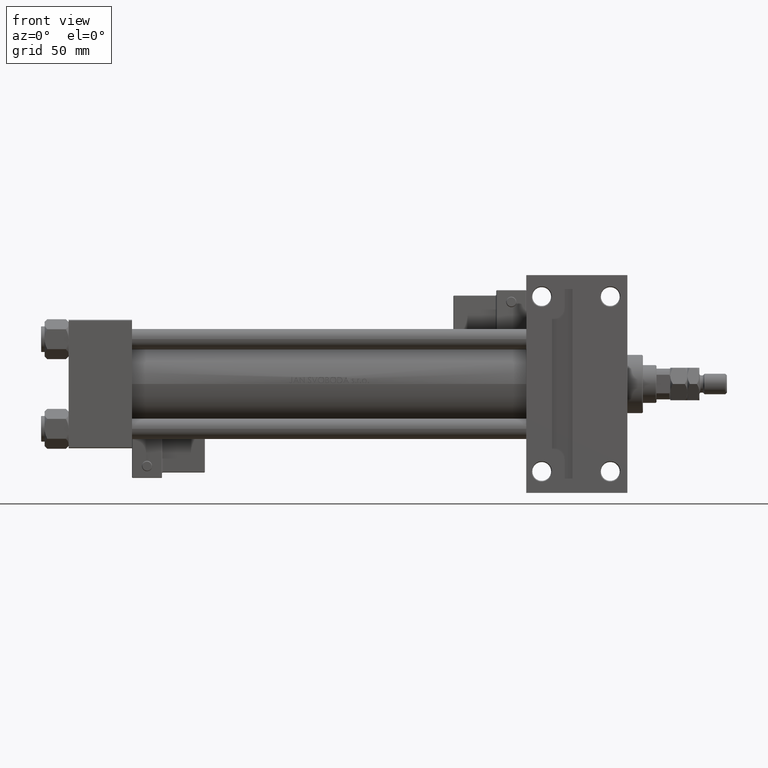
[diagram: clean part render]
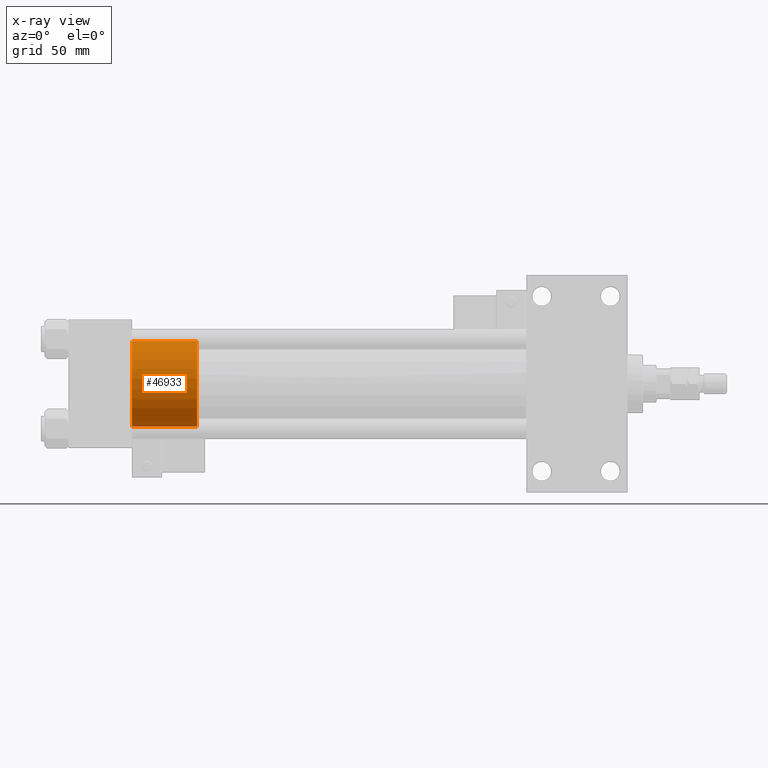
[diagram: x-ray — body ghosted, one internal face saturated and labeled with its STEP entity id]
A machine part, front view, then the same camera in x-ray: the body is ghosted and one INTERNAL B-rep face — a face not visible from any outside direction — is saturated and labeled: STEP entity #46933.
In plain terms, the highlighted cylindrical surface (partial cylindrical patch) has radius 25 mm, axis along (-1, 0, 0).
Its self-contained STEP definition (entity closure, byte-faithful):
#981 = DIRECTION ( 'NONE',  ( -1.000000000000000000, 0.000000000000000000, 0.000000000000000000 ) ) ;
#2353 = AXIS2_PLACEMENT_3D ( 'NONE', #29628, #36634, #45500 ) ;
#2949 = EDGE_CURVE ( 'NONE', #47718, #29989, #6965, .T. ) ;
#4135 = CARTESIAN_POINT ( 'NONE',  ( 0.000000000000000000, 0.000000000000000000, 38.00000000000000000 ) ) ;
#4839 = CARTESIAN_POINT ( 'NONE',  ( 0.000000000000000000, 0.000000000000000000, 0.000000000000000000 ) ) ;
#6815 = CARTESIAN_POINT ( 'NONE',  ( 25.00000000000000000, 3.061616997868383043E-15, 0.000000000000000000 ) ) ;
#6946 = EDGE_CURVE ( 'NONE', #37483, #29989, #38031, .T. ) ;
#6965 = CIRCLE ( 'NONE', #33514, 25.00000000000000000 ) ;
#10472 = DIRECTION ( 'NONE',  ( -0.000000000000000000, -0.000000000000000000, -1.000000000000000000 ) ) ;
#10508 = CARTESIAN_POINT ( 'NONE',  ( 25.00000000000000000, 3.061616997868383043E-15, 38.00000000000000000 ) ) ;
#11996 = ORIENTED_EDGE ( 'NONE', *, *, #6946, .F. ) ;
#12457 = DIRECTION ( 'NONE',  ( -0.000000000000000000, -0.000000000000000000, -1.000000000000000000 ) ) ;
#12551 = VECTOR ( 'NONE', #46108, 1000.000000000000000 ) ;
#14085 = VECTOR ( 'NONE', #10472, 1000.000000000000000 ) ;
#14202 = ORIENTED_EDGE ( 'NONE', *, *, #2949, .T. ) ;
#14617 = LINE ( 'NONE', #29940, #14085 ) ;
#14648 = ORIENTED_EDGE ( 'NONE', *, *, #47742, .T. ) ;
#17293 = DIRECTION ( 'NONE',  ( 0.000000000000000000, 0.000000000000000000, 1.000000000000000000 ) ) ;
#21513 = AXIS2_PLACEMENT_3D ( 'NONE', #4135, #12457, #981 ) ;
#22348 = CARTESIAN_POINT ( 'NONE',  ( -25.00000000000000000, 0.000000000000000000, 0.000000000000000000 ) ) ;
#28950 = EDGE_CURVE ( 'NONE', #44882, #37483, #47169, .T. ) ;
#29628 = CARTESIAN_POINT ( 'NONE',  ( 0.000000000000000000, 0.000000000000000000, 38.00000000000000000 ) ) ;
#29940 = CARTESIAN_POINT ( 'NONE',  ( 25.00000000000000000, 3.061616997868383043E-15, 38.00000000000000000 ) ) ;
#29989 = VERTEX_POINT ( 'NONE', #22348 ) ;
#32170 = CYLINDRICAL_SURFACE ( 'NONE', #21513, 25.00000000000000000 ) ;
#32505 = EDGE_LOOP ( 'NONE', ( #49340, #14648, #14202, #11996 ) ) ;
#33514 = AXIS2_PLACEMENT_3D ( 'NONE', #4839, #17293, #40170 ) ;
#36634 = DIRECTION ( 'NONE',  ( 0.000000000000000000, 0.000000000000000000, 1.000000000000000000 ) ) ;
#36844 = CARTESIAN_POINT ( 'NONE',  ( -25.00000000000000000, 0.000000000000000000, 38.00000000000000000 ) ) ;
#37483 = VERTEX_POINT ( 'NONE', #36844 ) ;
#38031 = LINE ( 'NONE', #42196, #12551 ) ;
#40170 = DIRECTION ( 'NONE',  ( 1.000000000000000000, 0.000000000000000000, 0.000000000000000000 ) ) ;
#42196 = CARTESIAN_POINT ( 'NONE',  ( -25.00000000000000000, 0.000000000000000000, 38.00000000000000000 ) ) ;
#43885 = FACE_OUTER_BOUND ( 'NONE', #32505, .T. ) ;
#44882 = VERTEX_POINT ( 'NONE', #10508 ) ;
#45500 = DIRECTION ( 'NONE',  ( 1.000000000000000000, 0.000000000000000000, 0.000000000000000000 ) ) ;
#46108 = DIRECTION ( 'NONE',  ( -0.000000000000000000, -0.000000000000000000, -1.000000000000000000 ) ) ;
#46933 = ADVANCED_FACE ( 'NONE', ( #43885 ), #32170, .T. ) ;
#47169 = CIRCLE ( 'NONE', #2353, 25.00000000000000000 ) ;
#47718 = VERTEX_POINT ( 'NONE', #6815 ) ;
#47742 = EDGE_CURVE ( 'NONE', #44882, #47718, #14617, .T. ) ;
#49340 = ORIENTED_EDGE ( 'NONE', *, *, #28950, .F. ) ;